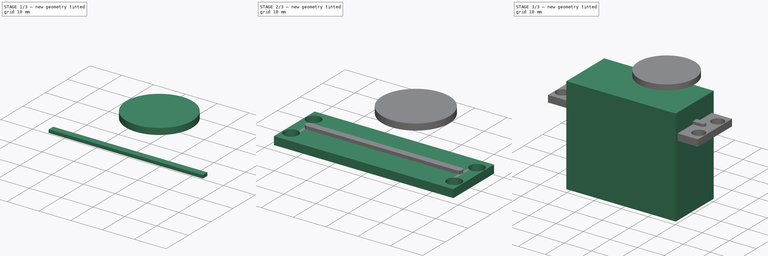
[diagram: build sequence overview — one tinted view per stage of 3, left to right]
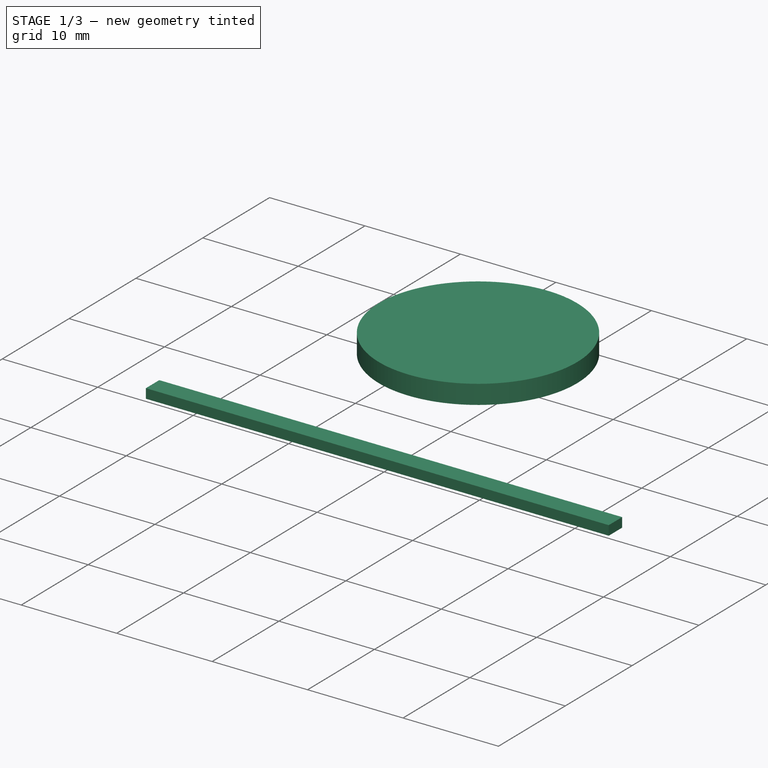
[diagram: stage 1 of 3 — iso view after this stage's code; geometry added in this stage tinted green]
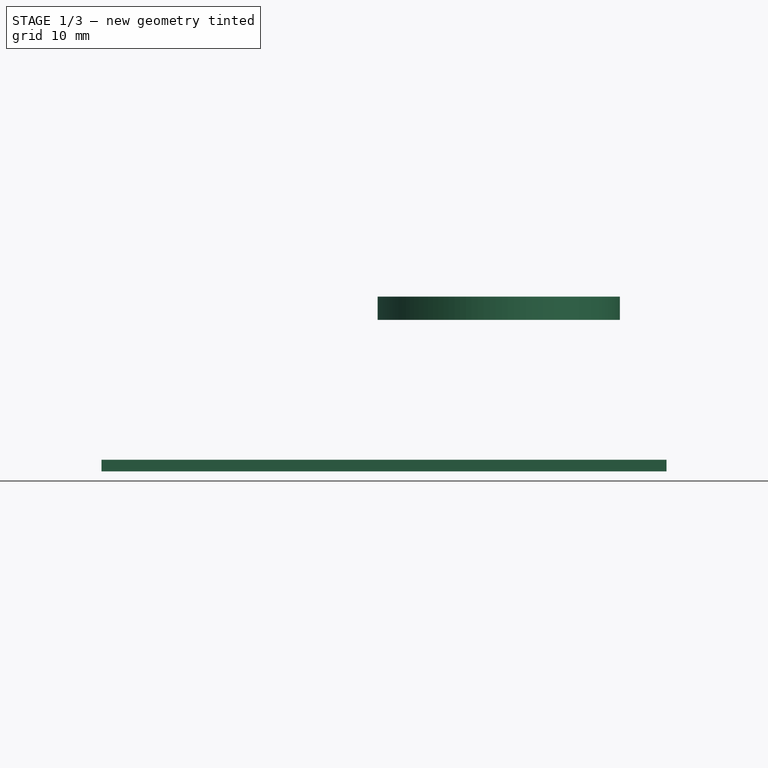
[diagram: stage 1 of 3 — front view after this stage's code; geometry added in this stage tinted green]
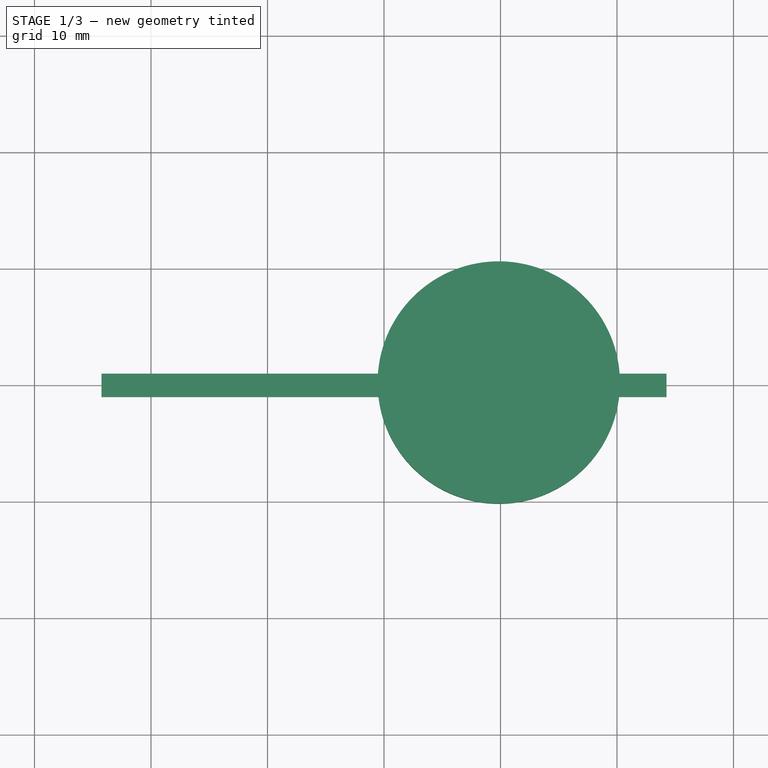
[diagram: stage 1 of 3 — top view after this stage's code; geometry added in this stage tinted green]
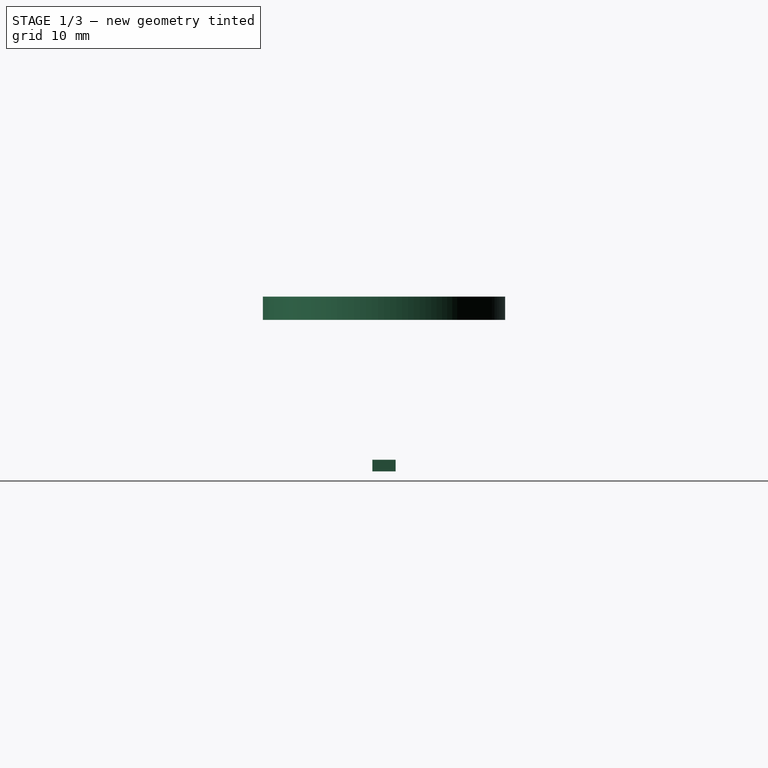
[diagram: stage 1 of 3 — right view after this stage's code; geometry added in this stage tinted green]
FCSTD DOCUMENT  (FreeCAD 0.16RUnknown)
Label: ParallaxServo
License: CreativeCommons Attribution-NonCommercial
LicenseURL: http://creativecommons.org/licenses/by-nc/4.0/
objects: Sketcher::SketchObject×4, PartDesign::Pad×4, PartDesign::Fillet×1, Part::MultiFuse×1
note: 14 computed .brp shape members not serialized (recipe doc carries the construction recipe); baked Part::Feature solids carry a one-line shape summary decoded from their .brp

FEATURE [Sketcher::SketchObject] Sketch002
  Placement = pos=(0,0,29.1) rot=(0,0,1;0rad)
  sketch-geometry (4):
    g0: LineSegment StartX=-24.25 StartY=1 StartZ=0 EndX=24.25 EndY=1 EndZ=0
    g1: LineSegment StartX=24.25 StartY=1 StartZ=0 EndX=24.25 EndY=-1 EndZ=0
    g2: LineSegment StartX=24.25 StartY=-1 StartZ=0 EndX=-24.25 EndY=-1 EndZ=0
    g3: LineSegment StartX=-24.25 StartY=-1 StartZ=0 EndX=-24.25 EndY=1 EndZ=0
  constraints (9):
    c: Coincident(g0,g1)
    c: Coincident(g1,g2)
    c: Coincident(g2,g3)
    c: Coincident(g3,g0)
    c: Symmetric(g0,g1,g-1)
    c: Symmetric(g0,g0,g-2)
    c: Symmetric(g0,g2,g-1)
    c: DistanceX(g0,g0) = 48.5
    c: DistanceY(g3,g3) = 2
FEATURE [PartDesign::Pad] Pad002
  Length = 1
  Length2 = 100
  Placement = pos=(0,0,29.1) rot=(0,0,1;0rad)
  Sketch = -> Sketch002
  Type = 0
FEATURE [Sketcher::SketchObject] Sketch003
  Placement = pos=(0,0,42.1) rot=(0,0,1;0rad)
  sketch-geometry (5):
    g0: LineSegment [constr] StartX=-20.25 StartY=10 StartZ=0 EndX=20.25 EndY=10 EndZ=0
    g1: LineSegment [constr] StartX=20.25 StartY=10 StartZ=0 EndX=20.25 EndY=-10 EndZ=0
    g2: LineSegment [constr] StartX=20.25 StartY=-10 StartZ=0 EndX=-20.25 EndY=-10 EndZ=0
    g3: LineSegment [constr] StartX=-20.25 StartY=-10 StartZ=0 EndX=-20.25 EndY=10 EndZ=0
    g4: Circle CenterX=9.85 CenterY=0 CenterZ=0 NormalX=0 NormalY=0 NormalZ=1 Radius=10.4
  constraints (13):
    c: Coincident(g0,g1)
    c: Coincident(g1,g2)
    c: Coincident(g2,g3)
    c: Coincident(g3,g0)
    c: Symmetric(g0,g1,g-1)
    c: Symmetric(g0,g0,g-2)
    c: Symmetric(g0,g2,g-1)
    c: DistanceX(g0,g0) = 40.5
    c: DistanceY(g3,g3) = 20
    c: PointOnObject(g4,g-1)
    c: DistanceX(g4,g0) = 10.4
    c: Radius(g4) = 10.4
    c: DistanceX(g-1,g4) = 9.85
FEATURE [PartDesign::Pad] Pad003
  Length = 2
  Length2 = 100
  Placement = pos=(0,0,42.1) rot=(0,0,1;0rad)
  Sketch = -> Sketch003
  Type = 0
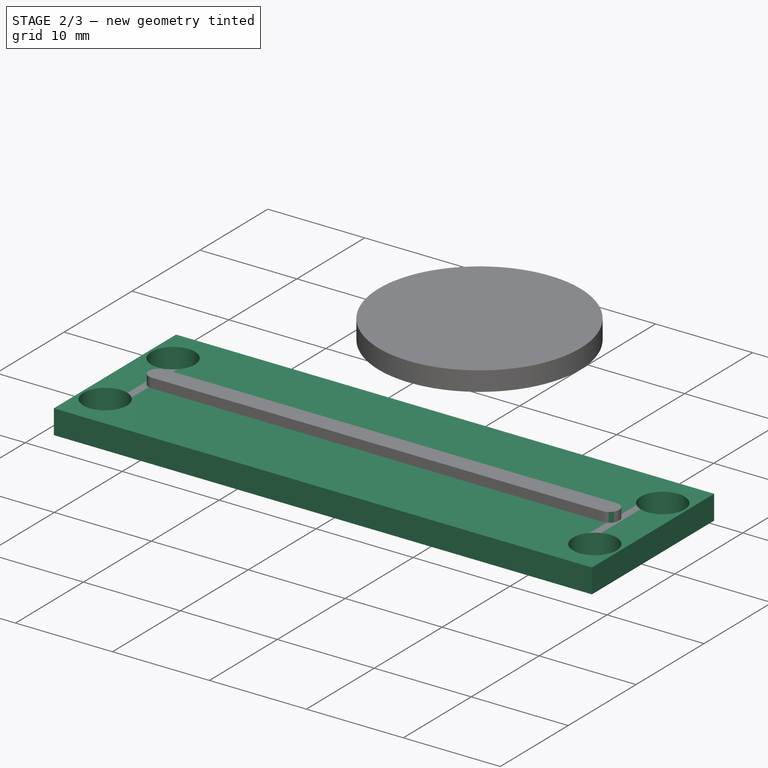
[diagram: stage 2 of 3 — iso view after this stage's code; geometry added in this stage tinted green]
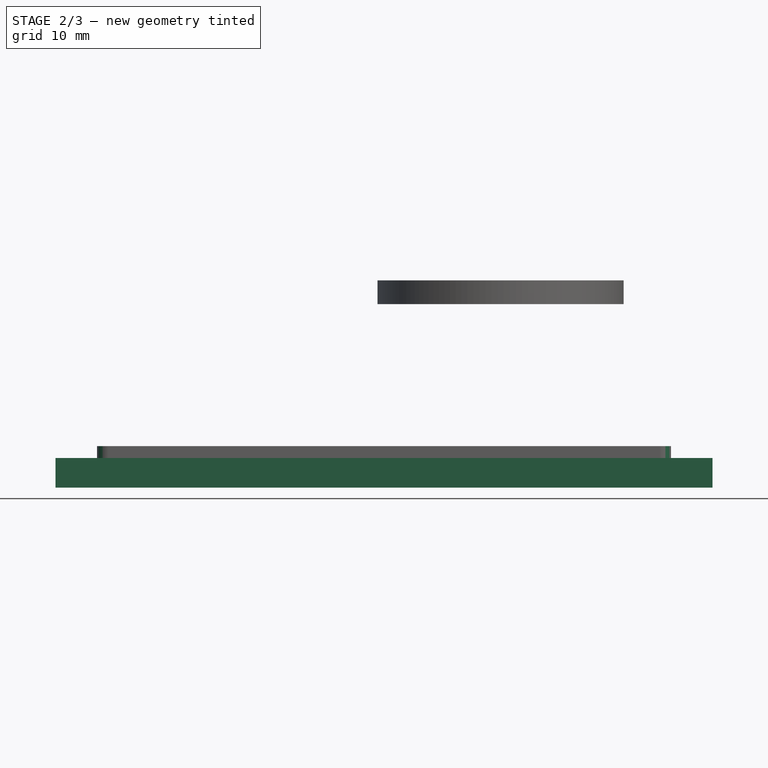
[diagram: stage 2 of 3 — front view after this stage's code; geometry added in this stage tinted green]
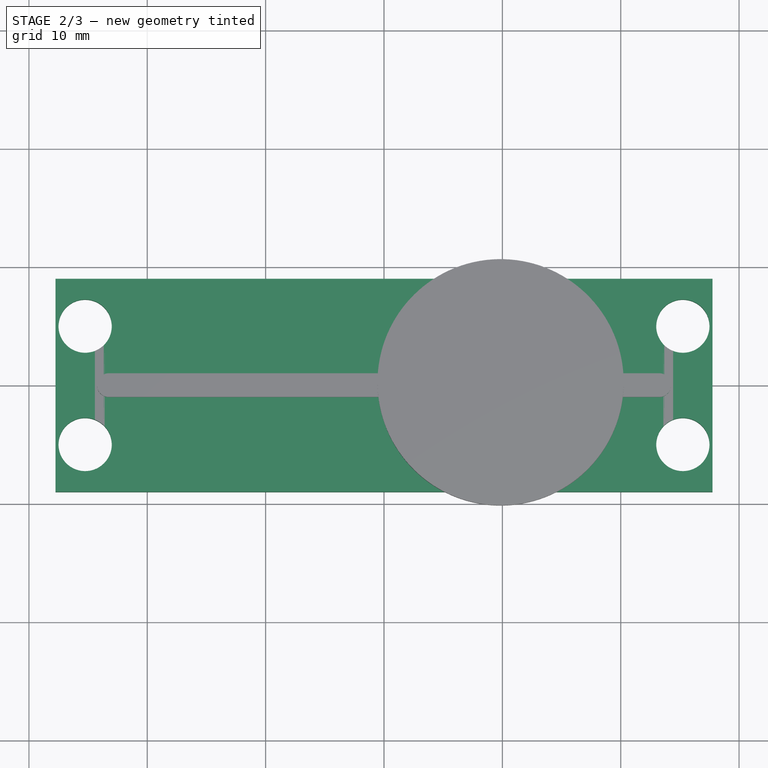
[diagram: stage 2 of 3 — top view after this stage's code; geometry added in this stage tinted green]
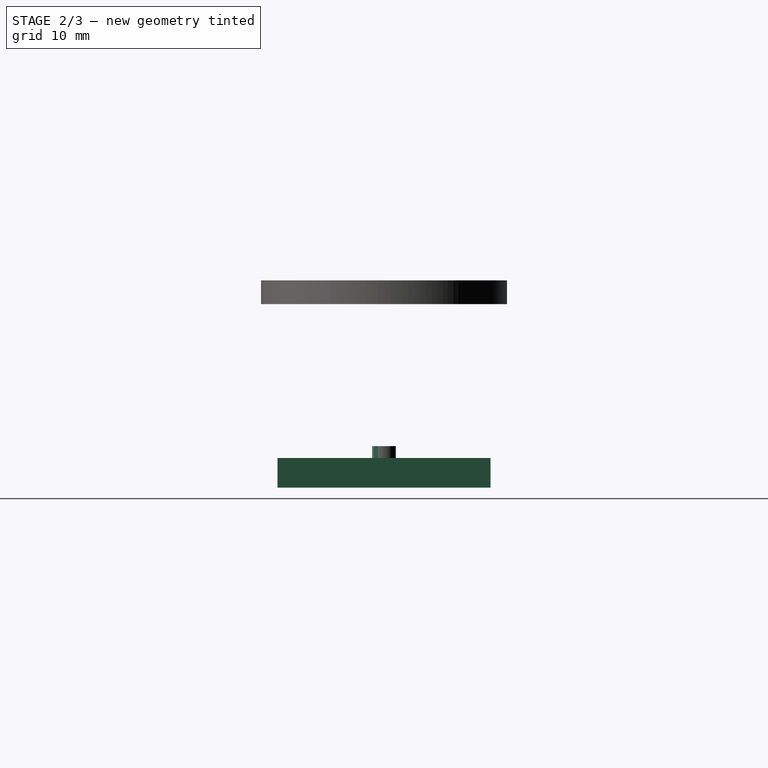
[diagram: stage 2 of 3 — right view after this stage's code; geometry added in this stage tinted green]
FEATURE [Sketcher::SketchObject] Sketch001
  Placement = pos=(0,0,26.6) rot=(0,0,1;0rad)
  sketch-geometry (8):
    g0: LineSegment StartX=-27.75 StartY=9 StartZ=0 EndX=27.75 EndY=9 EndZ=0
    g1: LineSegment StartX=27.75 StartY=9 StartZ=0 EndX=27.75 EndY=-9 EndZ=0
    g2: LineSegment StartX=27.75 StartY=-9 StartZ=0 EndX=-27.75 EndY=-9 EndZ=0
    g3: LineSegment StartX=-27.75 StartY=-9 StartZ=0 EndX=-27.75 EndY=9 EndZ=0
    g4: Circle CenterX=-25.25 CenterY=5 CenterZ=0 NormalX=0 NormalY=0 NormalZ=1 Radius=2.25
    g5: Circle CenterX=-25.25 CenterY=-5 CenterZ=0 NormalX=0 NormalY=0 NormalZ=1 Radius=2.25
    g6: Circle CenterX=25.25 CenterY=5 CenterZ=0 NormalX=0 NormalY=0 NormalZ=1 Radius=2.25
    g7: Circle CenterX=25.25 CenterY=-5 CenterZ=0 NormalX=0 NormalY=0 NormalZ=1 Radius=2.25
  constraints (18):
    c: Coincident(g0,g1)
    c: Coincident(g1,g2)
    c: Coincident(g2,g3)
    c: Coincident(g3,g0)
    c: Symmetric(g0,g1,g-1)
    c: Symmetric(g0,g0,g-2)
    c: Symmetric(g0,g2,g-1)
    c: DistanceX(g0,g0) = 55.5
    c: DistanceY(g3,g3) = 18
    c: Equal(g7,g6)
    c: Equal(g6,g4)
    c: Equal(g4,g5)
    c: Symmetric(g6,g7,g-1)
    c: Symmetric(g4,g5,g-1)
    c: DistanceY(g5,g4) = 10
    c: DistanceX(g4,g6) = 50.5
    c: Symmetric(g4,g6,g-2)
    c: Radius(g4) = 2.25
FEATURE [PartDesign::Pad] Pad001
  Length = 2.5
  Length2 = 100
  Placement = pos=(0,0,26.6) rot=(0,0,1;0rad)
  Sketch = -> Sketch001
  Type = 0
FEATURE [PartDesign::Fillet] Fillet
  Base = -> Pad002 [Edge8,Edge1,Edge5,Edge2]
  Placement = pos=(0,0,29.1) rot=(0,0,1;0rad)
  Radius = 0.99
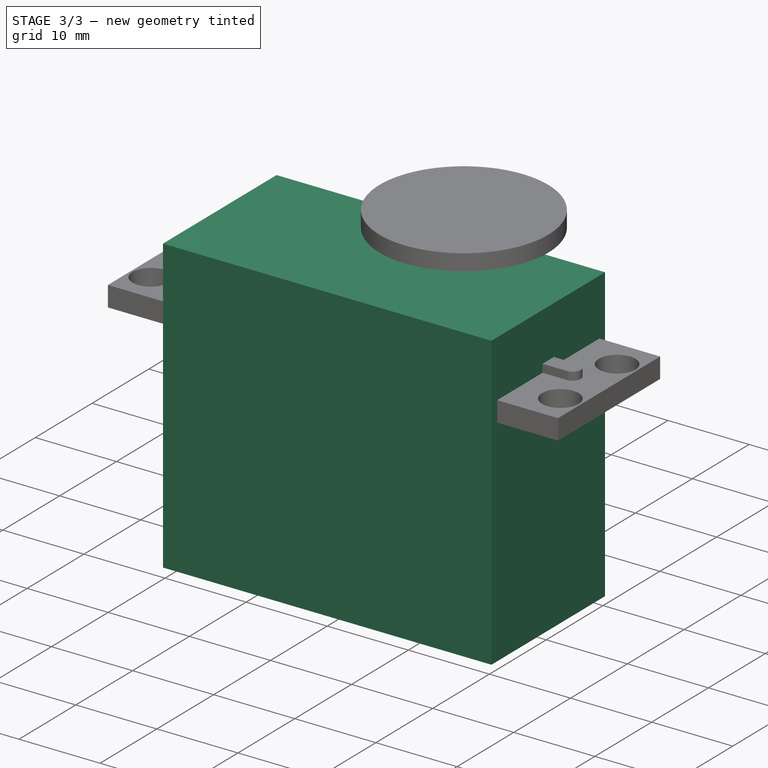
[diagram: stage 3 of 3 — iso view after this stage's code; geometry added in this stage tinted green]
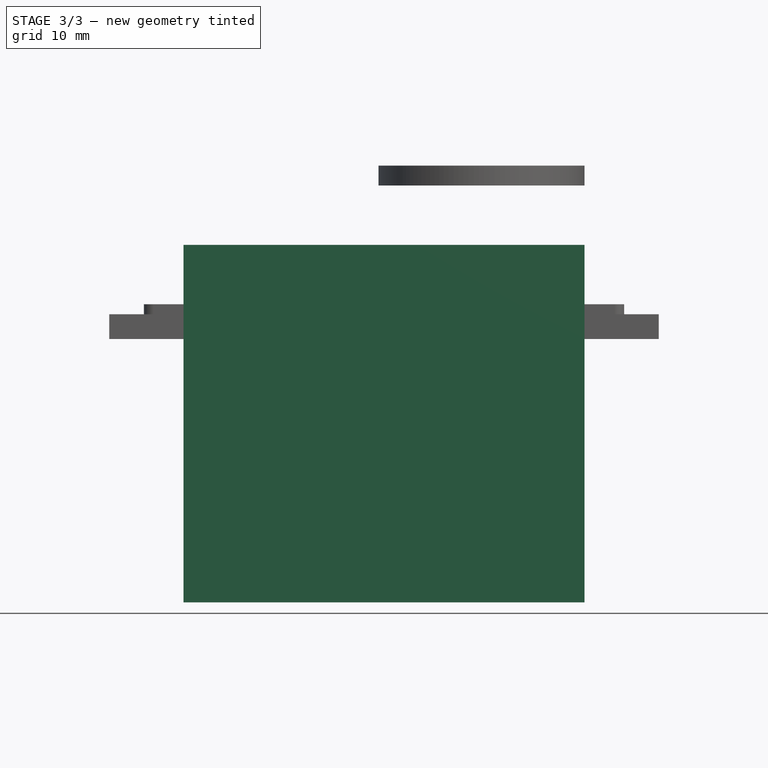
[diagram: stage 3 of 3 — front view after this stage's code; geometry added in this stage tinted green]
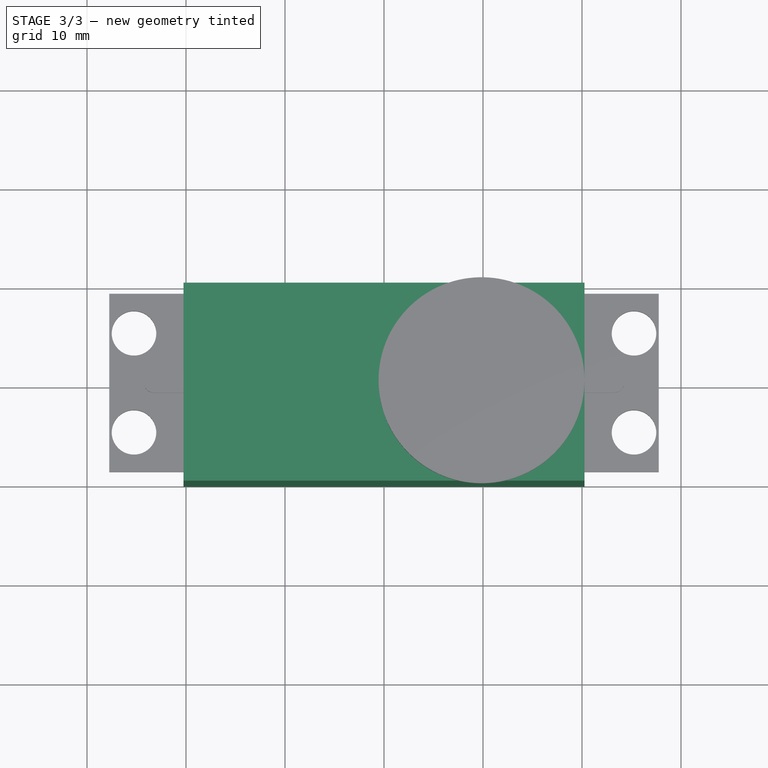
[diagram: stage 3 of 3 — top view after this stage's code; geometry added in this stage tinted green]
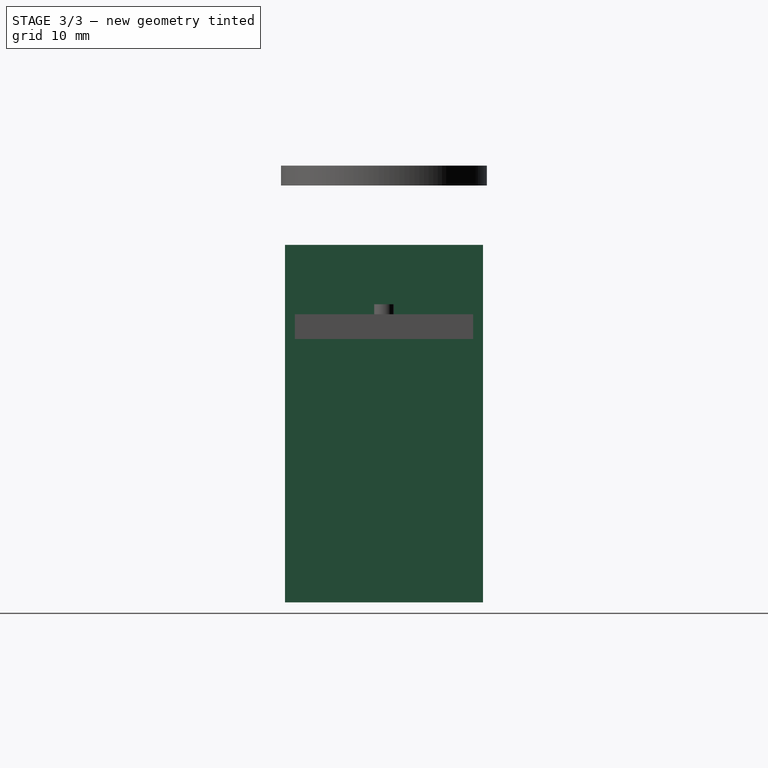
[diagram: stage 3 of 3 — right view after this stage's code; geometry added in this stage tinted green]
FEATURE [Sketcher::SketchObject] Sketch
  sketch-geometry (4):
    g0: LineSegment StartX=-20.25 StartY=10 StartZ=0 EndX=20.25 EndY=10 EndZ=0
    g1: LineSegment StartX=20.25 StartY=10 StartZ=0 EndX=20.25 EndY=-10 EndZ=0
    g2: LineSegment StartX=20.25 StartY=-10 StartZ=0 EndX=-20.25 EndY=-10 EndZ=0
    g3: LineSegment StartX=-20.25 StartY=-10 StartZ=0 EndX=-20.25 EndY=10 EndZ=0
  constraints (9):
    c: Coincident(g0,g1)
    c: Coincident(g1,g2)
    c: Coincident(g2,g3)
    c: Coincident(g3,g0)
    c: Symmetric(g0,g1,g-1)
    c: Symmetric(g0,g0,g-2)
    c: Symmetric(g0,g2,g-1)
    c: DistanceX(g0,g0) = 40.5
    c: DistanceY(g3,g3) = 20
FEATURE [PartDesign::Pad] Pad
  Length = 36.1
  Length2 = 100
  Sketch = -> Sketch
  Type = 0
FEATURE [Part::MultiFuse] Fusion
  Shapes = -> [Pad,Pad001,Fillet,Pad003]
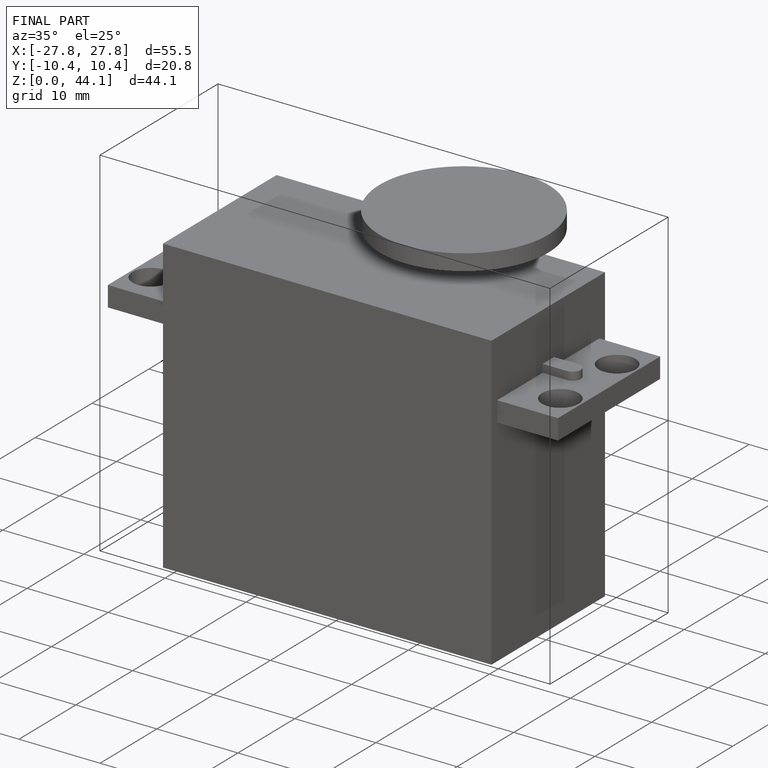
[diagram: finished part — iso view with bounding-box wireframe]
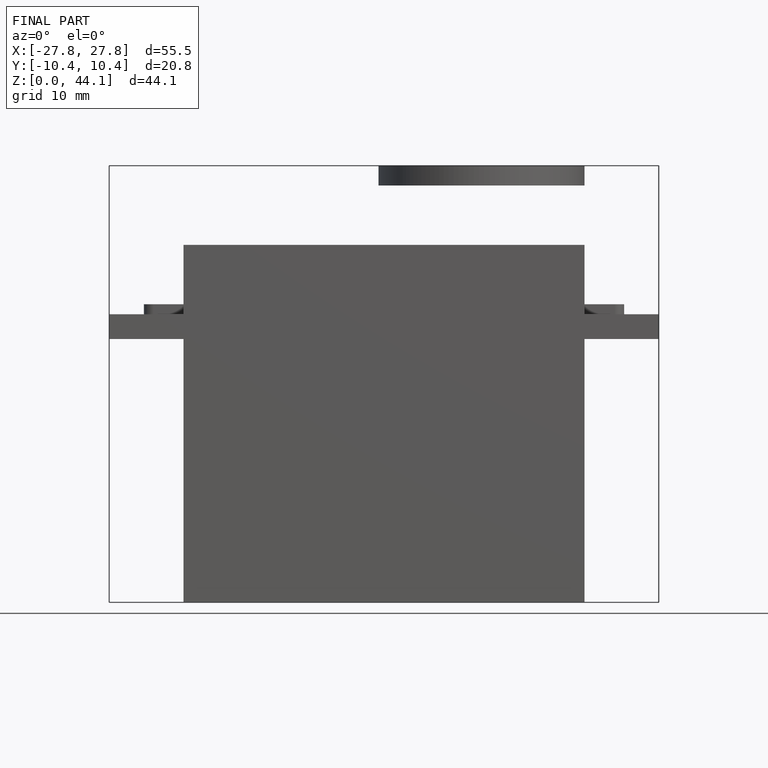
[diagram: finished part — front view with bounding-box wireframe]
